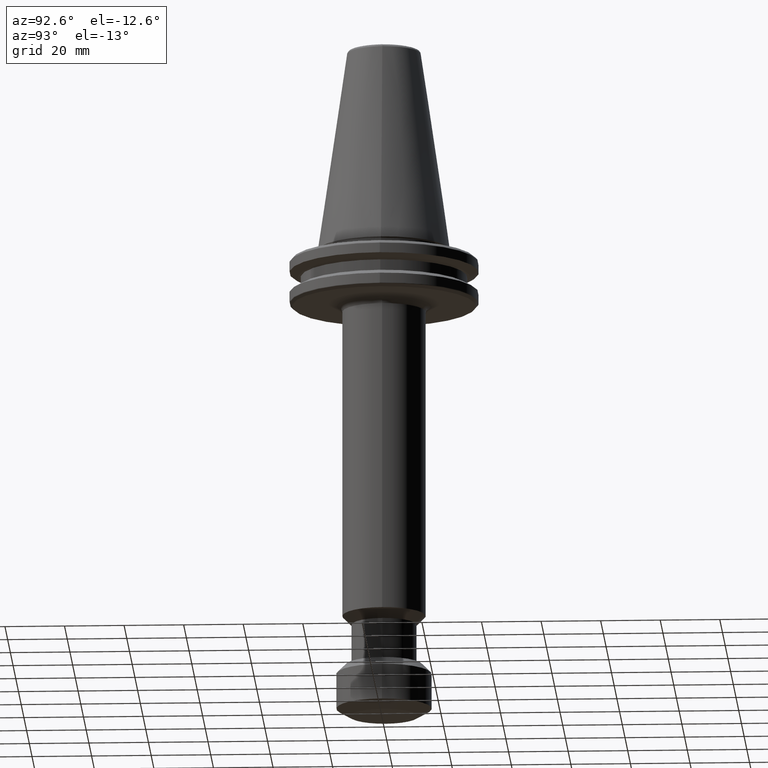
[diagram: clean part render]
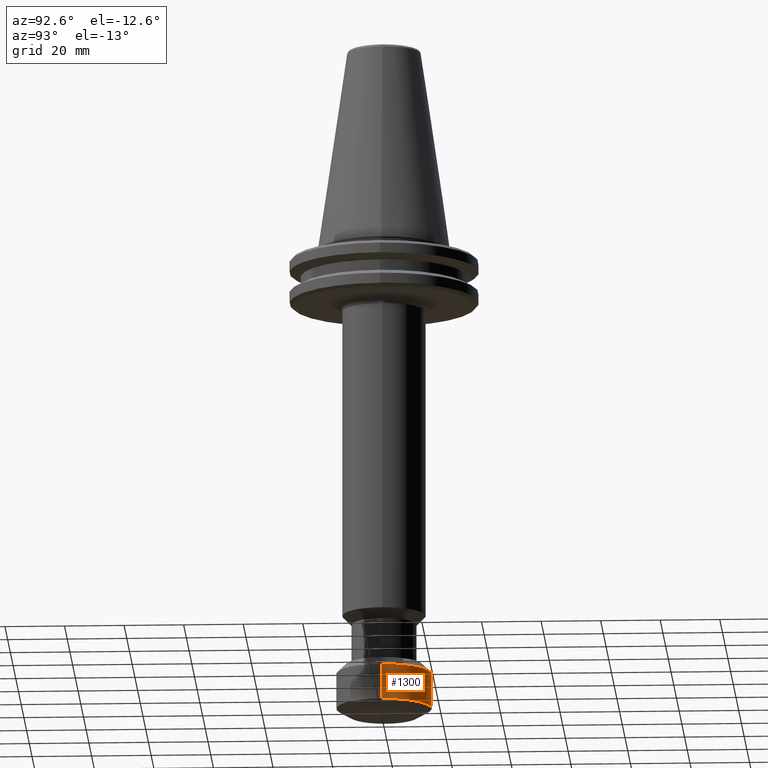
[diagram: same view with one face highlighted and labeled with its STEP entity id]
A machine part, auxiliary view. The second image highlights one B-rep face of the part: STEP entity #1300.
In plain terms, the highlighted cylindrical surface (partial cylindrical patch) has radius 16 mm, axis along (0, 0, 1).
Its self-contained STEP definition (entity closure, byte-faithful):
#44 = AXIS2_PLACEMENT_3D ( 'NONE', #619, #398, #441 ) ;
#45 = ORIENTED_EDGE ( 'NONE', *, *, #244, .T. ) ;
#62 = LINE ( 'NONE', #96, #969 ) ;
#69 = VERTEX_POINT ( 'NONE', #1114 ) ;
#75 = CIRCLE ( 'NONE', #680, 16.00000000000000000 ) ;
#94 = CYLINDRICAL_SURFACE ( 'NONE', #44, 16.00000000000000000 ) ;
#96 = CARTESIAN_POINT ( 'NONE',  ( 16.00000000000000000, 0.0000000000000000000, -157.4019237889999900 ) ) ;
#186 = CARTESIAN_POINT ( 'NONE',  ( 0.0000000000000000000, 0.0000000000000000000, -145.5000000000000600 ) ) ;
#222 = ORIENTED_EDGE ( 'NONE', *, *, #776, .F. ) ;
#228 = DIRECTION ( 'NONE',  ( 0.0000000000000000000, 0.0000000000000000000, 1.000000000000000000 ) ) ;
#244 = EDGE_CURVE ( 'NONE', #466, #1147, #936, .T. ) ;
#256 = DIRECTION ( 'NONE',  ( 0.0000000000000000000, 0.0000000000000000000, 1.000000000000000000 ) ) ;
#332 = CARTESIAN_POINT ( 'NONE',  ( 16.00000000000003900, 0.0000000000000000000, -145.5000000000000600 ) ) ;
#380 = DIRECTION ( 'NONE',  ( 0.0000000000000000000, 0.0000000000000000000, 1.000000000000000000 ) ) ;
#398 = DIRECTION ( 'NONE',  ( 0.0000000000000000000, 0.0000000000000000000, 1.000000000000000000 ) ) ;
#441 = DIRECTION ( 'NONE',  ( 1.000000000000000000, 0.0000000000000000000, 0.0000000000000000000 ) ) ;
#466 = VERTEX_POINT ( 'NONE', #538 ) ;
#504 = CARTESIAN_POINT ( 'NONE',  ( 0.0000000000000000000, 0.0000000000000000000, -157.4019237889999900 ) ) ;
#538 = CARTESIAN_POINT ( 'NONE',  ( -16.00000000000002500, 1.959434878635767900E-015, -157.4019237889999900 ) ) ;
#539 = FACE_OUTER_BOUND ( 'NONE', #1369, .T. ) ;
#556 = CARTESIAN_POINT ( 'NONE',  ( -16.00000000000003900, 1.959434878635769500E-015, -145.5000000000000600 ) ) ;
#619 = CARTESIAN_POINT ( 'NONE',  ( 0.0000000000000000000, 0.0000000000000000000, -157.4019237889999900 ) ) ;
#623 = DIRECTION ( 'NONE',  ( 1.000000000000000000, 0.0000000000000000000, 0.0000000000000000000 ) ) ;
#632 = DIRECTION ( 'NONE',  ( -1.000000000000000000, 0.0000000000000000000, 0.0000000000000000000 ) ) ;
#680 = AXIS2_PLACEMENT_3D ( 'NONE', #504, #380, #623 ) ;
#776 = EDGE_CURVE ( 'NONE', #69, #1061, #62, .T. ) ;
#826 = ORIENTED_EDGE ( 'NONE', *, *, #1518, .F. ) ;
#854 = CIRCLE ( 'NONE', #1321, 16.00000000000003900 ) ;
#936 = LINE ( 'NONE', #1134, #1528 ) ;
#969 = VECTOR ( 'NONE', #256, 1000.000000000000000 ) ;
#1061 = VERTEX_POINT ( 'NONE', #332 ) ;
#1114 = CARTESIAN_POINT ( 'NONE',  ( 15.99999999999992000, 9.135426255197844700E-045, -157.4019237889999900 ) ) ;
#1134 = CARTESIAN_POINT ( 'NONE',  ( -16.00000000000000000, 1.959434878635765100E-015, -157.4019237889999900 ) ) ;
#1147 = VERTEX_POINT ( 'NONE', #556 ) ;
#1233 = EDGE_CURVE ( 'NONE', #69, #466, #75, .T. ) ;
#1300 = ADVANCED_FACE ( 'NONE', ( #539 ), #94, .T. ) ;
#1321 = AXIS2_PLACEMENT_3D ( 'NONE', #186, #1508, #632 ) ;
#1369 = EDGE_LOOP ( 'NONE', ( #1478, #45, #826, #222 ) ) ;
#1478 = ORIENTED_EDGE ( 'NONE', *, *, #1233, .T. ) ;
#1508 = DIRECTION ( 'NONE',  ( -0.0000000000000000000, -0.0000000000000000000, 1.000000000000000000 ) ) ;
#1518 = EDGE_CURVE ( 'NONE', #1061, #1147, #854, .T. ) ;
#1528 = VECTOR ( 'NONE', #228, 1000.000000000000000 ) ;